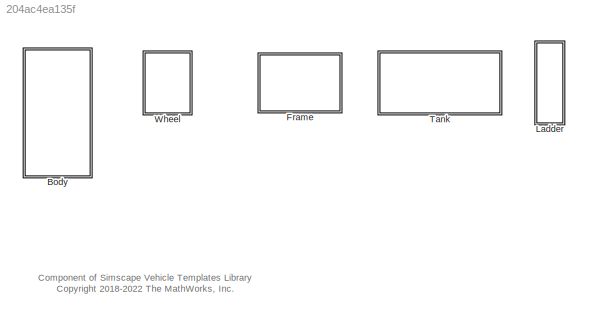
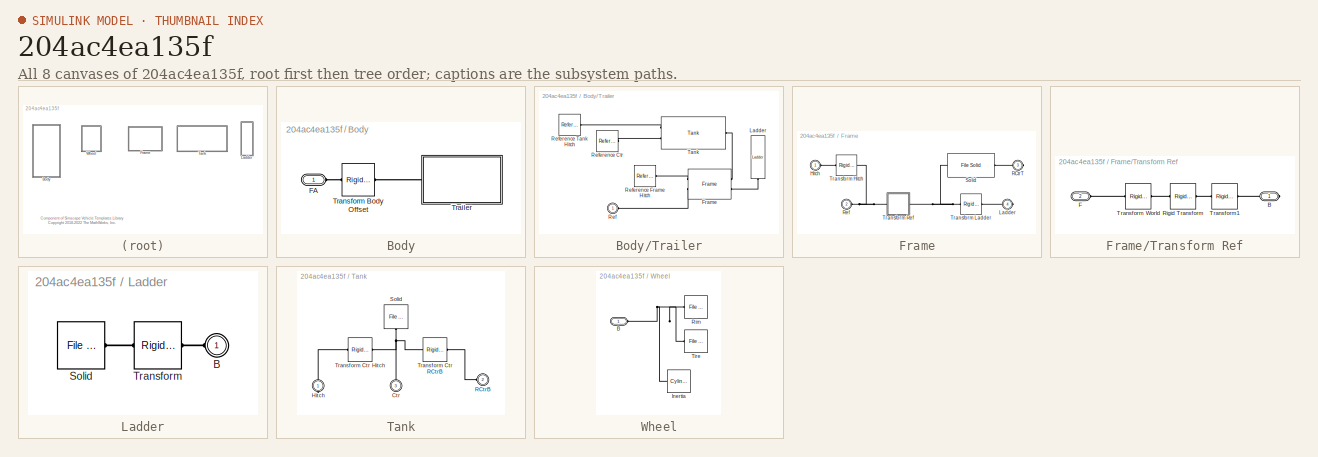
[diagram: thumbnail index - all 8 canvases of the model, root first then tree order]
MODEL slx_204ac4ea135f
KIND library
CONFIG AbsTol = auto
CONFIG EnableMultiTasking = off
CONFIG FixedStep = auto
CONFIG MaxStep = auto
CONFIG MinStep = auto
CONFIG RelTol = 1e-3
CONFIG SampleTimeConstraint = Unconstrained
CONFIG SolverName = VariableStepAuto
CONFIG StartTime = 0.0
CONFIG StopTime = 10.0
BLOCK [SubSystem] Body
  Ports = [0, 0, 0, 0, 0, 1]
  RequestExecContextInheritance = off
BLOCK [PMIOPort] Body/FA
  Side = Left
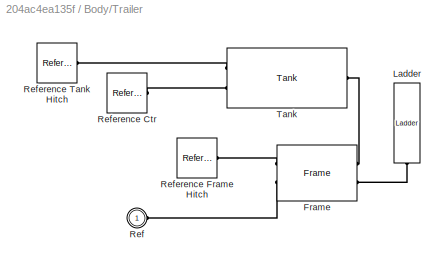
BLOCK [SubSystem] Body/Trailer
  Ports = [0, 0, 0, 0, 0, 1]
  RequestExecContextInheritance = off
BLOCK [Reference] Body/Trailer/Frame  REF=$bdroot/Frame
  Ports = [0, 0, 0, 0, 0, 2, 2]
  SourceBlock = $bdroot/Frame
  SourceType = SubSystem
BLOCK [Reference] Body/Trailer/Ladder  REF=$bdroot/Ladder
  NameLocation = right
  Ports = [0, 0, 0, 0, 0, 1]
  SourceBlock = $bdroot/Ladder
  SourceType = SubSystem
BLOCK [PMIOPort] Body/Trailer/Ref
  Side = Left
BLOCK [Reference] Body/Trailer/Reference Ctr  REF=sm_lib/Frames and
Transforms/Reference
Frame
  Ports = [0, 0, 0, 0, 0, 0, 1]
  SourceBlock = sm_lib/Frames and\nTransforms/Reference\nFrame
  SourceProductBaseCode = MS
  SourceType = Reference\nFrame
BLOCK [Reference] Body/Trailer/Reference Frame Hitch  REF=sm_lib/Frames and
Transforms/Reference
Frame
  Ports = [0, 0, 0, 0, 0, 0, 1]
  SourceBlock = sm_lib/Frames and\nTransforms/Reference\nFrame
  SourceProductBaseCode = MS
  SourceType = Reference\nFrame
BLOCK [Reference] Body/Trailer/Reference Tank Hitch  REF=sm_lib/Frames and
Transforms/Reference
Frame
  Ports = [0, 0, 0, 0, 0, 0, 1]
  SourceBlock = sm_lib/Frames and\nTransforms/Reference\nFrame
  SourceProductBaseCode = MS
  SourceType = Reference\nFrame
BLOCK [Reference] Body/Trailer/Tank  REF=$bdroot/Tank
  Ports = [0, 0, 0, 0, 0, 1, 2]
  SourceBlock = $bdroot/Tank
BLOCK [Reference] Body/Transform Body Offset  REF=sm_lib/Frames and
Transforms/Rigid
Transform
  Ports = [0, 0, 0, 0, 0, 1, 1]
  SourceBlock = sm_lib/Frames and\nTransforms/Rigid\nTransform
  SourceProductBaseCode = MS
  SourceType = Rigid\nTransform
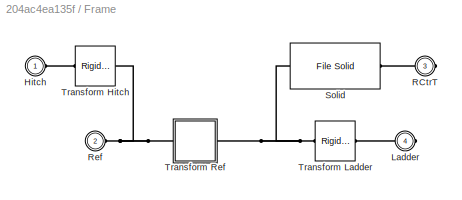
BLOCK [SubSystem] Frame
  Ports = [0, 0, 0, 0, 0, 2, 2]
  RequestExecContextInheritance = off
BLOCK [PMIOPort] Frame/Hitch
  Side = Left
BLOCK [PMIOPort] Frame/Ladder
  Port = 4
  Side = Right
BLOCK [PMIOPort] Frame/RCtrT
  Port = 3
  Side = Right
BLOCK [PMIOPort] Frame/Ref
  Port = 2
  Side = Left
BLOCK [Reference] Frame/Solid  REF=sm_lib/Body Elements/File Solid
  Ports = [0, 0, 0, 0, 0, 1, 1]
  SourceBlock = sm_lib/Body Elements/File Solid
  SourceProductBaseCode = MS
  SourceType = File Solid
BLOCK [Reference] Frame/Transform Hitch  REF=sm_lib/Frames and
Transforms/Rigid
Transform
  Ports = [0, 0, 0, 0, 0, 1, 1]
  SourceBlock = sm_lib/Frames and\nTransforms/Rigid\nTransform
  SourceProductBaseCode = MS
  SourceType = Rigid\nTransform
BLOCK [Reference] Frame/Transform Ladder  REF=sm_lib/Frames and
Transforms/Rigid
Transform
  Ports = [0, 0, 0, 0, 0, 1, 1]
  SourceBlock = sm_lib/Frames and\nTransforms/Rigid\nTransform
  SourceProductBaseCode = MS
  SourceType = Rigid\nTransform
BLOCK [SubSystem] Frame/Transform Ref
  Ports = [0, 0, 0, 0, 0, 1, 1]
  RequestExecContextInheritance = off
BLOCK [PMIOPort] Frame/Transform Ref/B
  Side = Right
BLOCK [PMIOPort] Frame/Transform Ref/F
  Port = 2
  Side = Left
BLOCK [Reference] Frame/Transform Ref/Rigid Transform  REF=sm_lib/Frames and
Transforms/Rigid
Transform
  Ports = [0, 0, 0, 0, 0, 1, 1]
  SourceBlock = sm_lib/Frames and\nTransforms/Rigid\nTransform
  SourceProductBaseCode = MS
  SourceType = Rigid\nTransform
BLOCK [Reference] Frame/Transform Ref/Transform World  REF=sm_lib/Frames and
Transforms/Rigid
Transform
  Ports = [0, 0, 0, 0, 0, 1, 1]
  SourceBlock = sm_lib/Frames and\nTransforms/Rigid\nTransform
  SourceProductBaseCode = MS
  SourceType = Rigid\nTransform
BLOCK [Reference] Frame/Transform Ref/Transform1  REF=sm_lib/Frames and
Transforms/Rigid
Transform
  Ports = [0, 0, 0, 0, 0, 1, 1]
  SourceBlock = sm_lib/Frames and\nTransforms/Rigid\nTransform
  SourceProductBaseCode = MS
  SourceType = Rigid\nTransform
BLOCK [SubSystem] Ladder
  NameLocation = right
  Ports = [0, 0, 0, 0, 0, 1]
  RequestExecContextInheritance = off
BLOCK [PMIOPort] Ladder/B
  Side = Left
BLOCK [Reference] Ladder/Solid  REF=sm_lib/Body Elements/File Solid
  Ports = [0, 0, 0, 0, 0, 0, 1]
  SourceBlock = sm_lib/Body Elements/File Solid
  SourceProductBaseCode = MS
  SourceType = File Solid
BLOCK [Reference] Ladder/Transform  REF=sm_lib/Frames and
Transforms/Rigid
Transform
  Ports = [0, 0, 0, 0, 0, 1, 1]
  SourceBlock = sm_lib/Frames and\nTransforms/Rigid\nTransform
  SourceProductBaseCode = MS
  SourceType = Rigid\nTransform
BLOCK [SubSystem] Tank
  Ports = [0, 0, 0, 0, 0, 1, 2]
  RequestExecContextInheritance = off
BLOCK [PMIOPort] Tank/Ctr
  NameLocation = right
  Port = 3
  Side = Right
BLOCK [PMIOPort] Tank/Hitch
  NameLocation = right
  Side = Right
BLOCK [PMIOPort] Tank/RCtrB
  Port = 2
  Side = Left
BLOCK [Reference] Tank/Solid  REF=sm_lib/Body Elements/File Solid
  NameLocation = left
  Ports = [0, 0, 0, 0, 0, 0, 1]
  SourceBlock = sm_lib/Body Elements/File Solid
  SourceProductBaseCode = MS
  SourceType = File Solid
BLOCK [Reference] Tank/Transform Ctr Hitch  REF=sm_lib/Frames and
Transforms/Rigid
Transform
  Ports = [0, 0, 0, 0, 0, 1, 1]
  SourceBlock = sm_lib/Frames and\nTransforms/Rigid\nTransform
  SourceProductBaseCode = MS
  SourceType = Rigid\nTransform
BLOCK [Reference] Tank/Transform Ctr RCtrB  REF=sm_lib/Frames and
Transforms/Rigid
Transform
  Ports = [0, 0, 0, 0, 0, 1, 1]
  SourceBlock = sm_lib/Frames and\nTransforms/Rigid\nTransform
  SourceProductBaseCode = MS
  SourceType = Rigid\nTransform
BLOCK [SubSystem] Wheel
  Ports = [0, 0, 0, 0, 0, 1]
  RequestExecContextInheritance = off
BLOCK [PMIOPort] Wheel/B
  Side = Left
BLOCK [Reference] Wheel/Inertia  REF=sm_lib/Body Elements/Cylindrical Solid
  Ports = [0, 0, 0, 0, 0, 0, 1]
  SourceBlock = sm_lib/Body Elements/Cylindrical Solid
  SourceProductBaseCode = MS
  SourceType = Cylindrical Solid
BLOCK [Reference] Wheel/Rim  REF=sm_lib/Body Elements/File Solid
  Ports = [0, 0, 0, 0, 0, 1]
  SourceBlock = sm_lib/Body Elements/File Solid
  SourceProductBaseCode = MS
  SourceType = File Solid
BLOCK [Reference] Wheel/Tire  REF=sm_lib/Body Elements/File Solid
  Ports = [0, 0, 0, 0, 0, 1]
  SourceBlock = sm_lib/Body Elements/File Solid
  SourceProductBaseCode = MS
  SourceType = File Solid
ANNOTATION (root): Component of Simscape Vehicle Templates Library <copyright redacted>
PLINE Body/FA:RConn1 -- Body/Transform Body Offset:LConn1
PLINE Body/Trailer/Frame:LConn1 -- Body/Trailer/Reference Frame Hitch:RConn1
PLINE Body/Trailer/Frame:LConn2 -- Body/Trailer/Ref:RConn1
PLINE Body/Trailer/Frame:RConn1 -- Body/Trailer/Tank:LConn1
PLINE Body/Trailer/Frame:RConn2 -- Body/Trailer/Ladder:LConn1
PLINE Body/Trailer/Reference Ctr:RConn1 -- Body/Trailer/Tank:RConn2
PLINE Body/Trailer/Reference Tank Hitch:RConn1 -- Body/Trailer/Tank:RConn1
PLINE Body/Trailer:LConn1 -- Body/Transform Body Offset:RConn1
PLINE Frame/Hitch:RConn1 -- Frame/Transform Hitch:RConn1
PLINE Frame/Ladder:RConn1 -- Frame/Transform Ladder:RConn1
PLINE Frame/RCtrT:RConn1 -- Frame/Solid:LConn1
PNET net1: Frame/Ref:RConn1 -- Frame/Transform Hitch:LConn1 -- Frame/Transform Ref:LConn1
PNET net2: Frame/Solid:RConn1 -- Frame/Transform Ladder:LConn1 -- Frame/Transform Ref:RConn1
PLINE Frame/Transform Ref/B:RConn1 -- Frame/Transform Ref/Transform1:LConn1
PLINE Frame/Transform Ref/F:RConn1 -- Frame/Transform Ref/Transform World:RConn1
PLINE Frame/Transform Ref/Rigid Transform:LConn1 -- Frame/Transform Ref/Transform1:RConn1
PLINE Frame/Transform Ref/Rigid Transform:RConn1 -- Frame/Transform Ref/Transform World:LConn1
PLINE Ladder/B:RConn1 -- Ladder/Transform:RConn1
PLINE Ladder/Solid:RConn1 -- Ladder/Transform:LConn1
PNET net3: Tank/Ctr:RConn1 -- Tank/Solid:RConn1 -- Tank/Transform Ctr Hitch:LConn1 -- Tank/Transform Ctr RCtrB:LConn1
PLINE Tank/Hitch:RConn1 -- Tank/Transform Ctr Hitch:RConn1
PLINE Tank/RCtrB:RConn1 -- Tank/Transform Ctr RCtrB:RConn1
PNET net4: Wheel/B:RConn1 -- Wheel/Inertia:RConn1 -- Wheel/Rim:LConn1 -- Wheel/Tire:LConn1
note: PNET lines group multi-terminal physical nets as a canonical sorted terminal list (undirected conserving connections); 2-terminal nets keep the pairwise PLINE form
